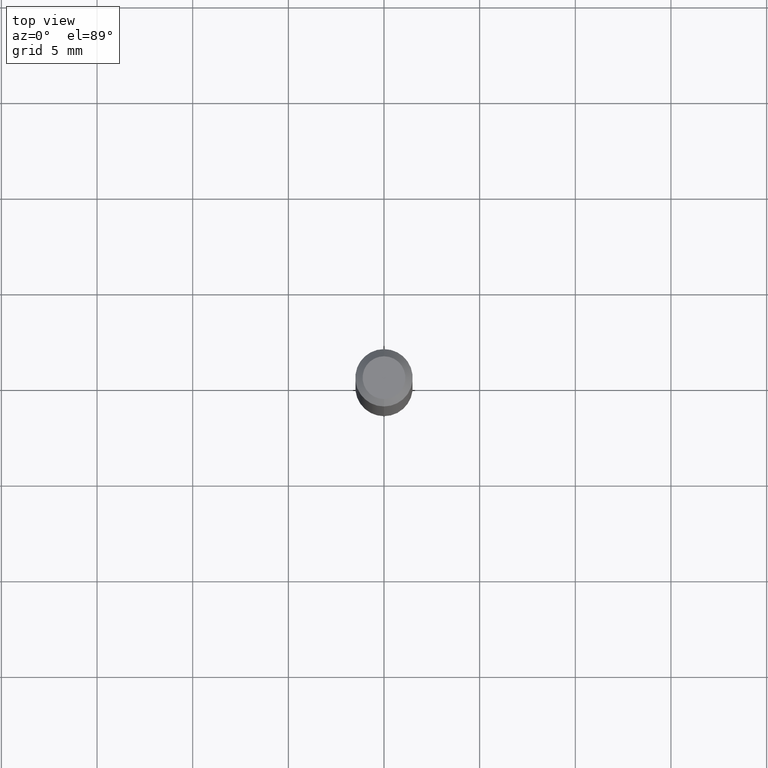
[diagram: clean part render]
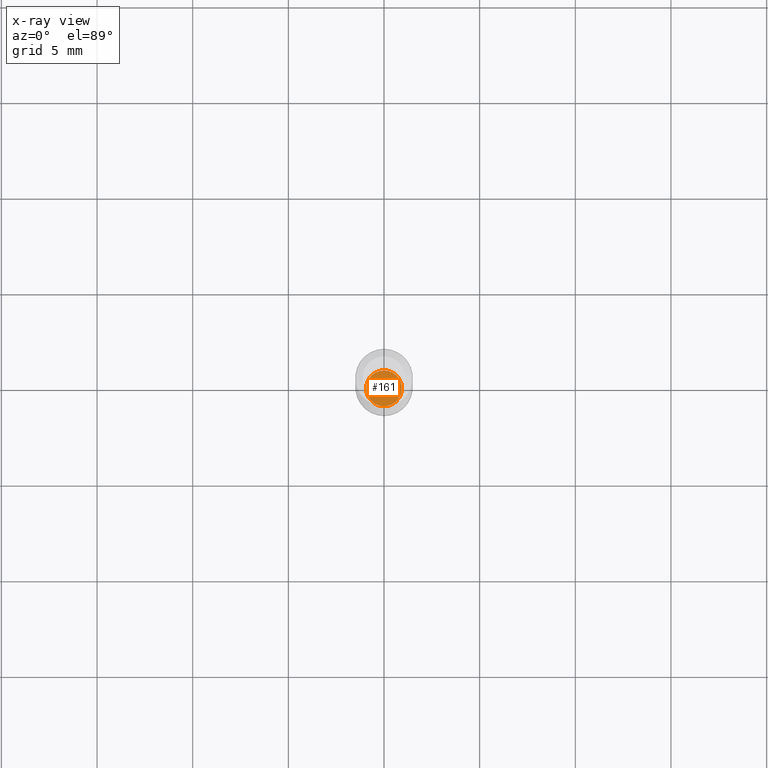
[diagram: x-ray — body ghosted, one internal face saturated and labeled with its STEP entity id]
A machine part, top view, then the same camera in x-ray: the body is ghosted and one INTERNAL B-rep face — a face not visible from any outside direction — is saturated and labeled: STEP entity #161.
In plain terms, the highlighted planar face has unit normal (-0, 0, 1).
Its self-contained STEP definition (entity closure, byte-faithful):
#24 = CARTESIAN_POINT ( 'NONE',  ( 3.109900335445528210E-29, -4.440120177324636638E-15, -1.271700000000000053 ) ) ;
#33 = VERTEX_POINT ( 'NONE', #51 ) ;
#37 = AXIS2_PLACEMENT_3D ( 'NONE', #511, #160, #287 ) ;
#51 = CARTESIAN_POINT ( 'NONE',  ( -2.576713228065921345E-16, -0.03690000000000443620, -1.271700000000000275 ) ) ;
#78 = PLANE ( 'NONE',  #386 ) ;
#82 = EDGE_LOOP ( 'NONE', ( #217, #352 ) ) ;
#126 = DIRECTION ( 'NONE',  ( -6.982962677686265133E-15, -1.000000000000000000, 0.000000000000000000 ) ) ;
#160 = DIRECTION ( 'NONE',  ( -2.445466961897875281E-29, 3.491483979967474240E-15, 1.000000000000000000 ) ) ;
#161 = ADVANCED_FACE ( 'NONE', ( #317 ), #78, .F. ) ;
#169 = CARTESIAN_POINT ( 'NONE',  ( 2.639666263349065723E-16, 0.03689999999999556135, -1.271700000000000275 ) ) ;
#208 = CIRCLE ( 'NONE', #489, 0.03690000000000000224 ) ;
#217 = ORIENTED_EDGE ( 'NONE', *, *, #480, .F. ) ;
#262 = DIRECTION ( 'NONE',  ( -6.982962677686265922E-15, -1.000000000000000000, 3.491483979967474635E-15 ) ) ;
#287 = DIRECTION ( 'NONE',  ( -6.982962677686265133E-15, -1.000000000000000000, 0.000000000000000000 ) ) ;
#292 = CARTESIAN_POINT ( 'NONE',  ( 3.109900335445529331E-29, -4.440120177324638216E-15, -1.271700000000000275 ) ) ;
#305 = EDGE_CURVE ( 'NONE', #458, #33, #387, .T. ) ;
#317 = FACE_OUTER_BOUND ( 'NONE', #82, .T. ) ;
#351 = DIRECTION ( 'NONE',  ( -2.445466961897874720E-29, 3.491483979967474635E-15, 1.000000000000000000 ) ) ;
#352 = ORIENTED_EDGE ( 'NONE', *, *, #305, .F. ) ;
#368 = DIRECTION ( 'NONE',  ( -2.445466961897875281E-29, 3.491483979967474240E-15, 1.000000000000000000 ) ) ;
#386 = AXIS2_PLACEMENT_3D ( 'NONE', #24, #351, #262 ) ;
#387 = CIRCLE ( 'NONE', #37, 0.03690000000000000224 ) ;
#458 = VERTEX_POINT ( 'NONE', #169 ) ;
#480 = EDGE_CURVE ( 'NONE', #33, #458, #208, .T. ) ;
#489 = AXIS2_PLACEMENT_3D ( 'NONE', #292, #368, #126 ) ;
#511 = CARTESIAN_POINT ( 'NONE',  ( 3.109900335445529331E-29, -4.440120177324638216E-15, -1.271700000000000275 ) ) ;